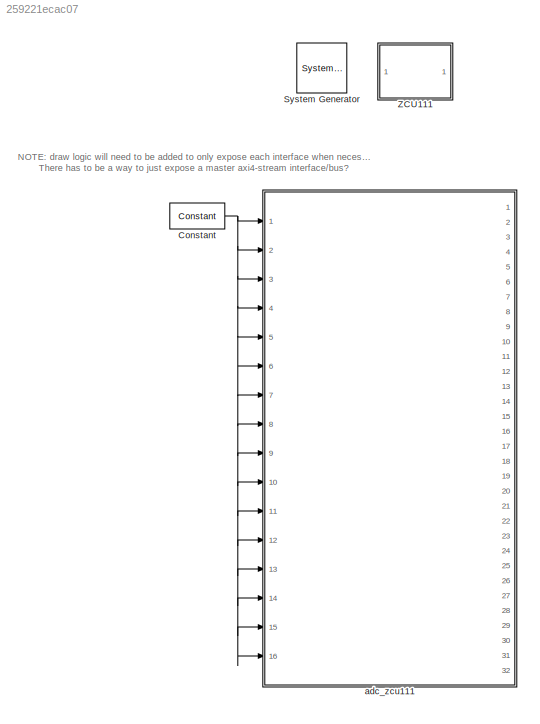
MODEL slx_259221ecac07
KIND model
CONFIG AbsTol = auto
CONFIG EnableMultiTasking = off
CONFIG FixedStep = auto
CONFIG MaxStep = auto
CONFIG MinStep = auto
CONFIG RelTol = 1e-3
CONFIG SampleTimeConstraint = Unconstrained
CONFIG Solver = VariableStepAuto
CONFIG SolverName = VariableStepAuto
CONFIG StartTime = 0.0
CONFIG StopTime = 10.0
BLOCK [Reference]  System Generator  REF=xbsIndex_r4/ System Generator
  AttributesFormatString = System\nGenerator
  Ports = []
  SourceBlock = xbsIndex_r4/ System Generator
  SourceType = Xilinx System Generator Block
  Tag = genX
  UserDataPersistent = on
BLOCK [Reference] Constant  REF=xbsIndex_r4/Constant
  Ports = [0, 1]
  SourceBlock = xbsIndex_r4/Constant
  SourceType = Xilinx Constant Block Block
BLOCK [SubSystem] ZCU111
  Ports = []
  RequestExecContextInheritance = off
  Tag = xps:xsg
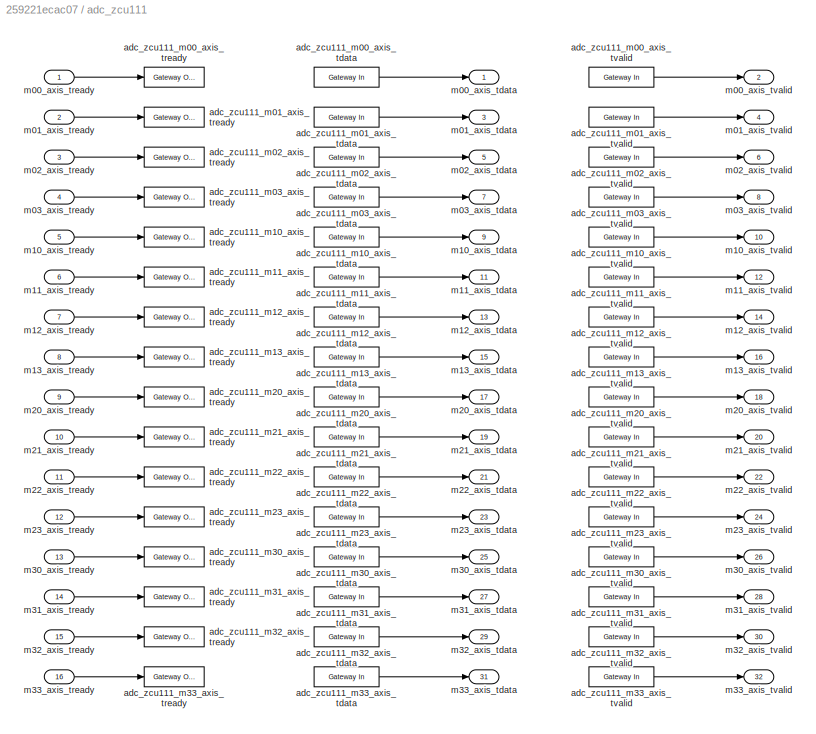
BLOCK [SubSystem] adc_zcu111
  Ports = [16, 32]
  RequestExecContextInheritance = off
  Tag = xps:adc_zcu111
BLOCK [Reference] adc_zcu111/adc_zcu111_m00_axis_tdata  REF=xbsIndex_r4/Gateway In
  Ports = [1, 1]
  SourceBlock = xbsIndex_r4/Gateway In
  SourceType = Xilinx Gateway In Block
BLOCK [Reference] adc_zcu111/adc_zcu111_m00_axis_tready  REF=xbsIndex_r4/Gateway Out
  Ports = [1, 1]
  SourceBlock = xbsIndex_r4/Gateway Out
  SourceType = Xilinx Gateway Out Block
BLOCK [Reference] adc_zcu111/adc_zcu111_m00_axis_tvalid  REF=xbsIndex_r4/Gateway In
  Ports = [1, 1]
  SourceBlock = xbsIndex_r4/Gateway In
  SourceType = Xilinx Gateway In Block
BLOCK [Reference] adc_zcu111/adc_zcu111_m01_axis_tdata  REF=xbsIndex_r4/Gateway In
  Ports = [1, 1]
  SourceBlock = xbsIndex_r4/Gateway In
  SourceType = Xilinx Gateway In Block
BLOCK [Reference] adc_zcu111/adc_zcu111_m01_axis_tready  REF=xbsIndex_r4/Gateway Out
  Ports = [1, 1]
  SourceBlock = xbsIndex_r4/Gateway Out
  SourceType = Xilinx Gateway Out Block
BLOCK [Reference] adc_zcu111/adc_zcu111_m01_axis_tvalid  REF=xbsIndex_r4/Gateway In
  Ports = [1, 1]
  SourceBlock = xbsIndex_r4/Gateway In
  SourceType = Xilinx Gateway In Block
BLOCK [Reference] adc_zcu111/adc_zcu111_m02_axis_tdata  REF=xbsIndex_r4/Gateway In
  Ports = [1, 1]
  SourceBlock = xbsIndex_r4/Gateway In
  SourceType = Xilinx Gateway In Block
BLOCK [Reference] adc_zcu111/adc_zcu111_m02_axis_tready  REF=xbsIndex_r4/Gateway Out
  Ports = [1, 1]
  SourceBlock = xbsIndex_r4/Gateway Out
  SourceType = Xilinx Gateway Out Block
BLOCK [Reference] adc_zcu111/adc_zcu111_m02_axis_tvalid  REF=xbsIndex_r4/Gateway In
  Ports = [1, 1]
  SourceBlock = xbsIndex_r4/Gateway In
  SourceType = Xilinx Gateway In Block
BLOCK [Reference] adc_zcu111/adc_zcu111_m03_axis_tdata  REF=xbsIndex_r4/Gateway In
  Ports = [1, 1]
  SourceBlock = xbsIndex_r4/Gateway In
  SourceType = Xilinx Gateway In Block
BLOCK [Reference] adc_zcu111/adc_zcu111_m03_axis_tready  REF=xbsIndex_r4/Gateway Out
  Ports = [1, 1]
  SourceBlock = xbsIndex_r4/Gateway Out
  SourceType = Xilinx Gateway Out Block
BLOCK [Reference] adc_zcu111/adc_zcu111_m03_axis_tvalid  REF=xbsIndex_r4/Gateway In
  Ports = [1, 1]
  SourceBlock = xbsIndex_r4/Gateway In
  SourceType = Xilinx Gateway In Block
BLOCK [Reference] adc_zcu111/adc_zcu111_m10_axis_tdata  REF=xbsIndex_r4/Gateway In
  Ports = [1, 1]
  SourceBlock = xbsIndex_r4/Gateway In
  SourceType = Xilinx Gateway In Block
BLOCK [Reference] adc_zcu111/adc_zcu111_m10_axis_tready  REF=xbsIndex_r4/Gateway Out
  Ports = [1, 1]
  SourceBlock = xbsIndex_r4/Gateway Out
  SourceType = Xilinx Gateway Out Block
BLOCK [Reference] adc_zcu111/adc_zcu111_m10_axis_tvalid  REF=xbsIndex_r4/Gateway In
  Ports = [1, 1]
  SourceBlock = xbsIndex_r4/Gateway In
  SourceType = Xilinx Gateway In Block
BLOCK [Reference] adc_zcu111/adc_zcu111_m11_axis_tdata  REF=xbsIndex_r4/Gateway In
  Ports = [1, 1]
  SourceBlock = xbsIndex_r4/Gateway In
  SourceType = Xilinx Gateway In Block
BLOCK [Reference] adc_zcu111/adc_zcu111_m11_axis_tready  REF=xbsIndex_r4/Gateway Out
  Ports = [1, 1]
  SourceBlock = xbsIndex_r4/Gateway Out
  SourceType = Xilinx Gateway Out Block
BLOCK [Reference] adc_zcu111/adc_zcu111_m11_axis_tvalid  REF=xbsIndex_r4/Gateway In
  Ports = [1, 1]
  SourceBlock = xbsIndex_r4/Gateway In
  SourceType = Xilinx Gateway In Block
BLOCK [Reference] adc_zcu111/adc_zcu111_m12_axis_tdata  REF=xbsIndex_r4/Gateway In
  Ports = [1, 1]
  SourceBlock = xbsIndex_r4/Gateway In
  SourceType = Xilinx Gateway In Block
BLOCK [Reference] adc_zcu111/adc_zcu111_m12_axis_tready  REF=xbsIndex_r4/Gateway Out
  Ports = [1, 1]
  SourceBlock = xbsIndex_r4/Gateway Out
  SourceType = Xilinx Gateway Out Block
BLOCK [Reference] adc_zcu111/adc_zcu111_m12_axis_tvalid  REF=xbsIndex_r4/Gateway In
  Ports = [1, 1]
  SourceBlock = xbsIndex_r4/Gateway In
  SourceType = Xilinx Gateway In Block
BLOCK [Reference] adc_zcu111/adc_zcu111_m13_axis_tdata  REF=xbsIndex_r4/Gateway In
  Ports = [1, 1]
  SourceBlock = xbsIndex_r4/Gateway In
  SourceType = Xilinx Gateway In Block
BLOCK [Reference] adc_zcu111/adc_zcu111_m13_axis_tready  REF=xbsIndex_r4/Gateway Out
  Ports = [1, 1]
  SourceBlock = xbsIndex_r4/Gateway Out
  SourceType = Xilinx Gateway Out Block
BLOCK [Reference] adc_zcu111/adc_zcu111_m13_axis_tvalid  REF=xbsIndex_r4/Gateway In
  Ports = [1, 1]
  SourceBlock = xbsIndex_r4/Gateway In
  SourceType = Xilinx Gateway In Block
BLOCK [Reference] adc_zcu111/adc_zcu111_m20_axis_tdata  REF=xbsIndex_r4/Gateway In
  Ports = [1, 1]
  SourceBlock = xbsIndex_r4/Gateway In
  SourceType = Xilinx Gateway In Block
BLOCK [Reference] adc_zcu111/adc_zcu111_m20_axis_tready  REF=xbsIndex_r4/Gateway Out
  Ports = [1, 1]
  SourceBlock = xbsIndex_r4/Gateway Out
  SourceType = Xilinx Gateway Out Block
BLOCK [Reference] adc_zcu111/adc_zcu111_m20_axis_tvalid  REF=xbsIndex_r4/Gateway In
  Ports = [1, 1]
  SourceBlock = xbsIndex_r4/Gateway In
  SourceType = Xilinx Gateway In Block
BLOCK [Reference] adc_zcu111/adc_zcu111_m21_axis_tdata  REF=xbsIndex_r4/Gateway In
  Ports = [1, 1]
  SourceBlock = xbsIndex_r4/Gateway In
  SourceType = Xilinx Gateway In Block
BLOCK [Reference] adc_zcu111/adc_zcu111_m21_axis_tready  REF=xbsIndex_r4/Gateway Out
  Ports = [1, 1]
  SourceBlock = xbsIndex_r4/Gateway Out
  SourceType = Xilinx Gateway Out Block
BLOCK [Reference] adc_zcu111/adc_zcu111_m21_axis_tvalid  REF=xbsIndex_r4/Gateway In
  Ports = [1, 1]
  SourceBlock = xbsIndex_r4/Gateway In
  SourceType = Xilinx Gateway In Block
BLOCK [Reference] adc_zcu111/adc_zcu111_m22_axis_tdata  REF=xbsIndex_r4/Gateway In
  Ports = [1, 1]
  SourceBlock = xbsIndex_r4/Gateway In
  SourceType = Xilinx Gateway In Block
BLOCK [Reference] adc_zcu111/adc_zcu111_m22_axis_tready  REF=xbsIndex_r4/Gateway Out
  Ports = [1, 1]
  SourceBlock = xbsIndex_r4/Gateway Out
  SourceType = Xilinx Gateway Out Block
BLOCK [Reference] adc_zcu111/adc_zcu111_m22_axis_tvalid  REF=xbsIndex_r4/Gateway In
  Ports = [1, 1]
  SourceBlock = xbsIndex_r4/Gateway In
  SourceType = Xilinx Gateway In Block
BLOCK [Reference] adc_zcu111/adc_zcu111_m23_axis_tdata  REF=xbsIndex_r4/Gateway In
  Ports = [1, 1]
  SourceBlock = xbsIndex_r4/Gateway In
  SourceType = Xilinx Gateway In Block
BLOCK [Reference] adc_zcu111/adc_zcu111_m23_axis_tready  REF=xbsIndex_r4/Gateway Out
  Ports = [1, 1]
  SourceBlock = xbsIndex_r4/Gateway Out
  SourceType = Xilinx Gateway Out Block
BLOCK [Reference] adc_zcu111/adc_zcu111_m23_axis_tvalid  REF=xbsIndex_r4/Gateway In
  Ports = [1, 1]
  SourceBlock = xbsIndex_r4/Gateway In
  SourceType = Xilinx Gateway In Block
BLOCK [Reference] adc_zcu111/adc_zcu111_m30_axis_tdata  REF=xbsIndex_r4/Gateway In
  Ports = [1, 1]
  SourceBlock = xbsIndex_r4/Gateway In
  SourceType = Xilinx Gateway In Block
BLOCK [Reference] adc_zcu111/adc_zcu111_m30_axis_tready  REF=xbsIndex_r4/Gateway Out
  Ports = [1, 1]
  SourceBlock = xbsIndex_r4/Gateway Out
  SourceType = Xilinx Gateway Out Block
BLOCK [Reference] adc_zcu111/adc_zcu111_m30_axis_tvalid  REF=xbsIndex_r4/Gateway In
  Ports = [1, 1]
  SourceBlock = xbsIndex_r4/Gateway In
  SourceType = Xilinx Gateway In Block
BLOCK [Reference] adc_zcu111/adc_zcu111_m31_axis_tdata  REF=xbsIndex_r4/Gateway In
  Ports = [1, 1]
  SourceBlock = xbsIndex_r4/Gateway In
  SourceType = Xilinx Gateway In Block
BLOCK [Reference] adc_zcu111/adc_zcu111_m31_axis_tready  REF=xbsIndex_r4/Gateway Out
  Ports = [1, 1]
  SourceBlock = xbsIndex_r4/Gateway Out
  SourceType = Xilinx Gateway Out Block
BLOCK [Reference] adc_zcu111/adc_zcu111_m31_axis_tvalid  REF=xbsIndex_r4/Gateway In
  Ports = [1, 1]
  SourceBlock = xbsIndex_r4/Gateway In
  SourceType = Xilinx Gateway In Block
BLOCK [Reference] adc_zcu111/adc_zcu111_m32_axis_tdata  REF=xbsIndex_r4/Gateway In
  Ports = [1, 1]
  SourceBlock = xbsIndex_r4/Gateway In
  SourceType = Xilinx Gateway In Block
BLOCK [Reference] adc_zcu111/adc_zcu111_m32_axis_tready  REF=xbsIndex_r4/Gateway Out
  Ports = [1, 1]
  SourceBlock = xbsIndex_r4/Gateway Out
  SourceType = Xilinx Gateway Out Block
BLOCK [Reference] adc_zcu111/adc_zcu111_m32_axis_tvalid  REF=xbsIndex_r4/Gateway In
  Ports = [1, 1]
  SourceBlock = xbsIndex_r4/Gateway In
  SourceType = Xilinx Gateway In Block
BLOCK [Reference] adc_zcu111/adc_zcu111_m33_axis_tdata  REF=xbsIndex_r4/Gateway In
  Ports = [1, 1]
  SourceBlock = xbsIndex_r4/Gateway In
  SourceType = Xilinx Gateway In Block
BLOCK [Reference] adc_zcu111/adc_zcu111_m33_axis_tready  REF=xbsIndex_r4/Gateway Out
  Ports = [1, 1]
  SourceBlock = xbsIndex_r4/Gateway Out
  SourceType = Xilinx Gateway Out Block
BLOCK [Reference] adc_zcu111/adc_zcu111_m33_axis_tvalid  REF=xbsIndex_r4/Gateway In
  Ports = [1, 1]
  SourceBlock = xbsIndex_r4/Gateway In
  SourceType = Xilinx Gateway In Block
BLOCK [Outport] adc_zcu111/m00_axis_tdata
  IconDisplay = Port number
BLOCK [Inport] adc_zcu111/m00_axis_tready
  IconDisplay = Port number
  OutDataTypeStr = boolean
BLOCK [Outport] adc_zcu111/m00_axis_tvalid
  IconDisplay = Port number
  Port = 2
BLOCK [Outport] adc_zcu111/m01_axis_tdata
  IconDisplay = Port number
  Port = 3
BLOCK [Inport] adc_zcu111/m01_axis_tready
  IconDisplay = Port number
  OutDataTypeStr = boolean
  Port = 2
BLOCK [Outport] adc_zcu111/m01_axis_tvalid
  IconDisplay = Port number
  Port = 4
BLOCK [Outport] adc_zcu111/m02_axis_tdata
  IconDisplay = Port number
  Port = 5
BLOCK [Inport] adc_zcu111/m02_axis_tready
  IconDisplay = Port number
  OutDataTypeStr = boolean
  Port = 3
BLOCK [Outport] adc_zcu111/m02_axis_tvalid
  IconDisplay = Port number
  Port = 6
BLOCK [Outport] adc_zcu111/m03_axis_tdata
  IconDisplay = Port number
  Port = 7
BLOCK [Inport] adc_zcu111/m03_axis_tready
  IconDisplay = Port number
  OutDataTypeStr = boolean
  Port = 4
BLOCK [Outport] adc_zcu111/m03_axis_tvalid
  IconDisplay = Port number
  Port = 8
BLOCK [Outport] adc_zcu111/m10_axis_tdata
  IconDisplay = Port number
  Port = 9
BLOCK [Inport] adc_zcu111/m10_axis_tready
  IconDisplay = Port number
  OutDataTypeStr = boolean
  Port = 5
BLOCK [Outport] adc_zcu111/m10_axis_tvalid
  IconDisplay = Port number
  Port = 10
BLOCK [Outport] adc_zcu111/m11_axis_tdata
  IconDisplay = Port number
  Port = 11
BLOCK [Inport] adc_zcu111/m11_axis_tready
  IconDisplay = Port number
  OutDataTypeStr = boolean
  Port = 6
BLOCK [Outport] adc_zcu111/m11_axis_tvalid
  IconDisplay = Port number
  Port = 12
BLOCK [Outport] adc_zcu111/m12_axis_tdata
  IconDisplay = Port number
  Port = 13
BLOCK [Inport] adc_zcu111/m12_axis_tready
  IconDisplay = Port number
  OutDataTypeStr = boolean
  Port = 7
BLOCK [Outport] adc_zcu111/m12_axis_tvalid
  IconDisplay = Port number
  Port = 14
BLOCK [Outport] adc_zcu111/m13_axis_tdata
  IconDisplay = Port number
  Port = 15
BLOCK [Inport] adc_zcu111/m13_axis_tready
  IconDisplay = Port number
  OutDataTypeStr = boolean
  Port = 8
BLOCK [Outport] adc_zcu111/m13_axis_tvalid
  IconDisplay = Port number
  Port = 16
BLOCK [Outport] adc_zcu111/m20_axis_tdata
  IconDisplay = Port number
  Port = 17
BLOCK [Inport] adc_zcu111/m20_axis_tready
  IconDisplay = Port number
  OutDataTypeStr = boolean
  Port = 9
BLOCK [Outport] adc_zcu111/m20_axis_tvalid
  IconDisplay = Port number
  Port = 18
BLOCK [Outport] adc_zcu111/m21_axis_tdata
  IconDisplay = Port number
  Port = 19
BLOCK [Inport] adc_zcu111/m21_axis_tready
  IconDisplay = Port number
  OutDataTypeStr = boolean
  Port = 10
BLOCK [Outport] adc_zcu111/m21_axis_tvalid
  IconDisplay = Port number
  Port = 20
BLOCK [Outport] adc_zcu111/m22_axis_tdata
  IconDisplay = Port number
  Port = 21
BLOCK [Inport] adc_zcu111/m22_axis_tready
  IconDisplay = Port number
  OutDataTypeStr = boolean
  Port = 11
BLOCK [Outport] adc_zcu111/m22_axis_tvalid
  IconDisplay = Port number
  Port = 22
BLOCK [Outport] adc_zcu111/m23_axis_tdata
  IconDisplay = Port number
  Port = 23
BLOCK [Inport] adc_zcu111/m23_axis_tready
  IconDisplay = Port number
  OutDataTypeStr = boolean
  Port = 12
BLOCK [Outport] adc_zcu111/m23_axis_tvalid
  IconDisplay = Port number
  Port = 24
BLOCK [Outport] adc_zcu111/m30_axis_tdata
  IconDisplay = Port number
  Port = 25
BLOCK [Inport] adc_zcu111/m30_axis_tready
  IconDisplay = Port number
  OutDataTypeStr = boolean
  Port = 13
BLOCK [Outport] adc_zcu111/m30_axis_tvalid
  IconDisplay = Port number
  Port = 26
BLOCK [Outport] adc_zcu111/m31_axis_tdata
  IconDisplay = Port number
  Port = 27
BLOCK [Inport] adc_zcu111/m31_axis_tready
  IconDisplay = Port number
  OutDataTypeStr = boolean
  Port = 14
BLOCK [Outport] adc_zcu111/m31_axis_tvalid
  IconDisplay = Port number
  Port = 28
BLOCK [Outport] adc_zcu111/m32_axis_tdata
  IconDisplay = Port number
  Port = 29
BLOCK [Inport] adc_zcu111/m32_axis_tready
  IconDisplay = Port number
  OutDataTypeStr = boolean
  Port = 15
BLOCK [Outport] adc_zcu111/m32_axis_tvalid
  IconDisplay = Port number
  Port = 30
BLOCK [Outport] adc_zcu111/m33_axis_tdata
  IconDisplay = Port number
  Port = 31
BLOCK [Inport] adc_zcu111/m33_axis_tready
  IconDisplay = Port number
  OutDataTypeStr = boolean
  Port = 16
BLOCK [Outport] adc_zcu111/m33_axis_tvalid
  IconDisplay = Port number
  Port = 32
ANNOTATION (root): NOTE: draw logic will need to be added to only expose each interface when necessary... There has to be a way to just expose a master axi4-stream interface/bus?
NET Constant:1 -> adc_zcu111:1, adc_zcu111:10, adc_zcu111:11, adc_zcu111:12, adc_zcu111:13, adc_zcu111:14, adc_zcu111:15, adc_zcu111:16, adc_zcu111:2, adc_zcu111:3, adc_zcu111:4, adc_zcu111:5, adc_zcu111:6, adc_zcu111:7, adc_zcu111:8, adc_zcu111:9
note: NET lines group one-source signal fan-out (src -> all destinations, sorted); 1:1 wires keep LINE
